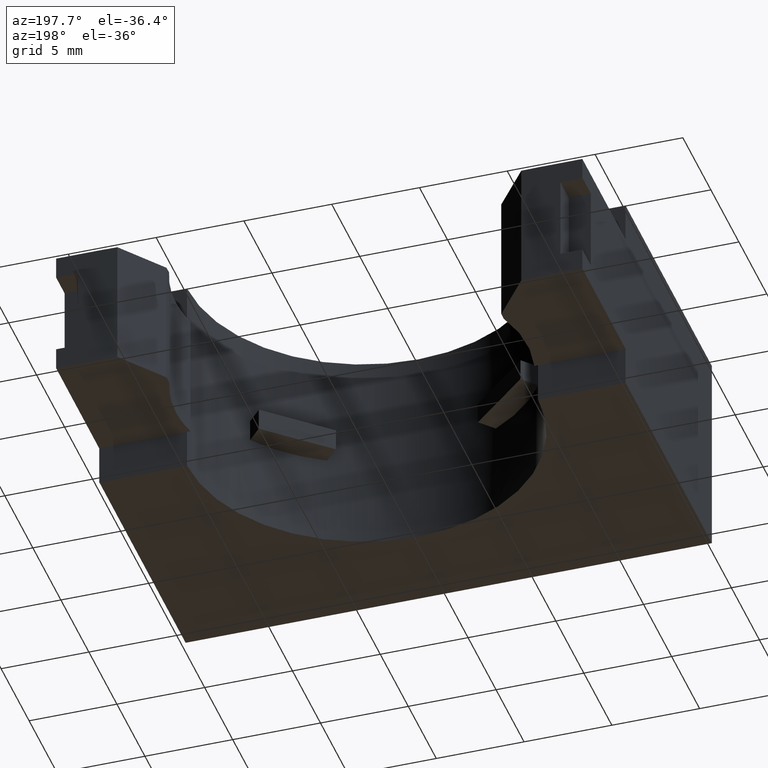
[diagram: clean part render]
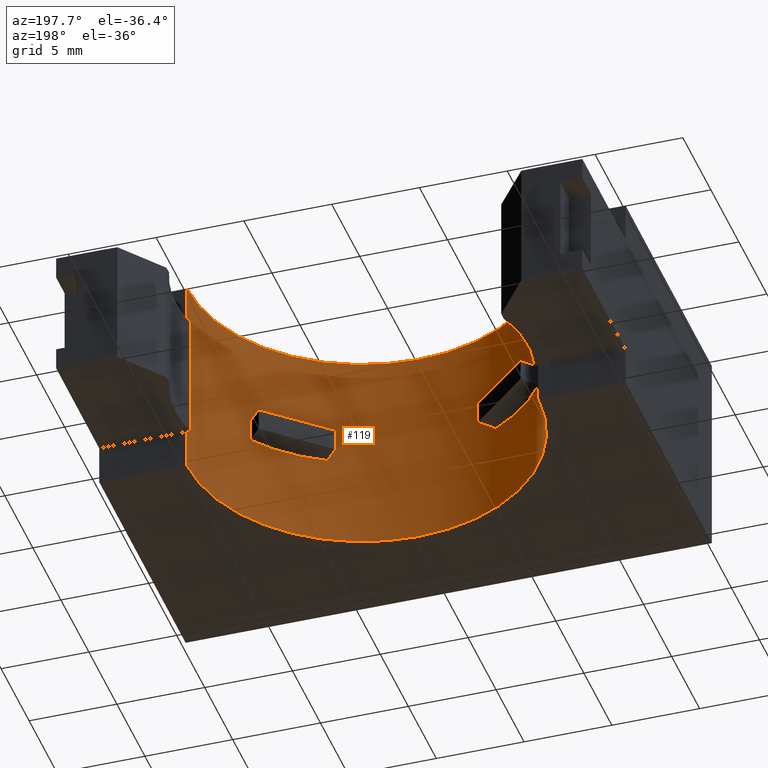
[diagram: same view with one face highlighted and labeled with its STEP entity id]
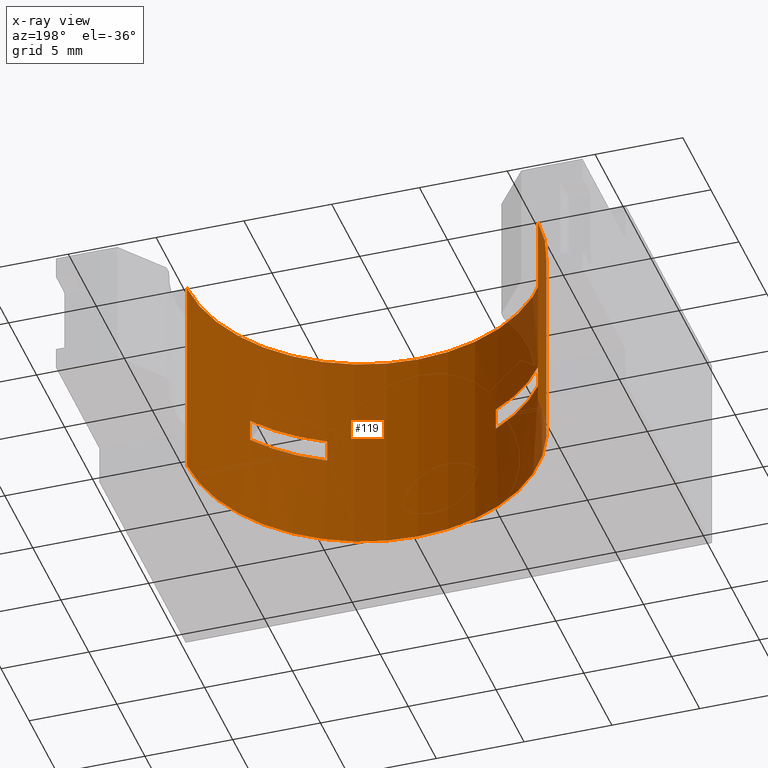
[diagram: x-ray of the same camera — body ghosted, the highlighted face saturated]
A machine part, auxiliary view. The second image highlights one B-rep face of the part: STEP entity #119.
The next image is the same camera in x-ray: the body ghosted, the highlighted face saturated — about 3% of this face is hidden behind the body in this view.
In plain terms, the highlighted cylindrical surface (partial cylindrical patch) has radius 9.9907 mm, axis along (-0, -0, 1).
Its self-contained STEP definition (entity closure, byte-faithful):
#50 = ORIENTED_EDGE ( 'NONE', *, *, #136, .F. ) ;
#91 = ORIENTED_EDGE ( 'NONE', *, *, #92, .F. ) ;
#92 = EDGE_CURVE ( 'NONE', #100, #101, #961, .T. ) ;
#100 = VERTEX_POINT ( 'NONE', #1007 ) ;
#101 = VERTEX_POINT ( 'NONE', #1006 ) ;
#102 = VERTEX_POINT ( 'NONE', #1010 ) ;
#108 = VERTEX_POINT ( 'NONE', #931 ) ;
#119 = ADVANCED_FACE ( 'NONE', ( #1015, #1014, #1013 ), #1011, .F. ) ;
#126 = EDGE_CURVE ( 'NONE', #174, #101, #1000, .T. ) ;
#127 = EDGE_LOOP ( 'NONE', ( #128, #262, #265, #50 ) ) ;
#128 = ORIENTED_EDGE ( 'NONE', *, *, #129, .F. ) ;
#129 = EDGE_CURVE ( 'NONE', #130, #261, #995, .T. ) ;
#130 = VERTEX_POINT ( 'NONE', #991 ) ;
#136 = EDGE_CURVE ( 'NONE', #261, #267, #948, .T. ) ;
#159 = VERTEX_POINT ( 'NONE', #849 ) ;
#173 = EDGE_CURVE ( 'NONE', #321, #174, #987, .T. ) ;
#174 = VERTEX_POINT ( 'NONE', #983 ) ;
#175 = ORIENTED_EDGE ( 'NONE', *, *, #126, .T. ) ;
#200 = EDGE_LOOP ( 'NONE', ( #91, #319, #322, #175 ) ) ;
#217 = EDGE_LOOP ( 'NONE', ( #218, #281, #283, #285, #288, #312, #331, #333 ) ) ;
#218 = ORIENTED_EDGE ( 'NONE', *, *, #219, .T. ) ;
#219 = EDGE_CURVE ( 'NONE', #220, #221, #903, .T. ) ;
#220 = VERTEX_POINT ( 'NONE', #899 ) ;
#221 = VERTEX_POINT ( 'NONE', #898 ) ;
#261 = VERTEX_POINT ( 'NONE', #1041 ) ;
#262 = ORIENTED_EDGE ( 'NONE', *, *, #263, .T. ) ;
#263 = EDGE_CURVE ( 'NONE', #130, #264, #1132, .T. ) ;
#264 = VERTEX_POINT ( 'NONE', #1128 ) ;
#265 = ORIENTED_EDGE ( 'NONE', *, *, #266, .T. ) ;
#266 = EDGE_CURVE ( 'NONE', #264, #267, #1089, .T. ) ;
#267 = VERTEX_POINT ( 'NONE', #1123 ) ;
#281 = ORIENTED_EDGE ( 'NONE', *, *, #282, .F. ) ;
#282 = EDGE_CURVE ( 'NONE', #108, #221, #1097, .T. ) ;
#283 = ORIENTED_EDGE ( 'NONE', *, *, #284, .F. ) ;
#284 = EDGE_CURVE ( 'NONE', #159, #108, #1093, .T. ) ;
#285 = ORIENTED_EDGE ( 'NONE', *, *, #286, .F. ) ;
#286 = EDGE_CURVE ( 'NONE', #287, #159, #1141, .T. ) ;
#287 = VERTEX_POINT ( 'NONE', #1137 ) ;
#288 = ORIENTED_EDGE ( 'NONE', *, *, #310, .F. ) ;
#306 = VERTEX_POINT ( 'NONE', #1144 ) ;
#310 = EDGE_CURVE ( 'NONE', #311, #287, #1068, .T. ) ;
#311 = VERTEX_POINT ( 'NONE', #1158 ) ;
#312 = ORIENTED_EDGE ( 'NONE', *, *, #313, .T. ) ;
#313 = EDGE_CURVE ( 'NONE', #311, #102, #1160, .T. ) ;
#319 = ORIENTED_EDGE ( 'NONE', *, *, #320, .F. ) ;
#320 = EDGE_CURVE ( 'NONE', #321, #100, #1401, .T. ) ;
#321 = VERTEX_POINT ( 'NONE', #1396 ) ;
#322 = ORIENTED_EDGE ( 'NONE', *, *, #173, .T. ) ;
#331 = ORIENTED_EDGE ( 'NONE', *, *, #332, .T. ) ;
#332 = EDGE_CURVE ( 'NONE', #102, #306, #1276, .T. ) ;
#333 = ORIENTED_EDGE ( 'NONE', *, *, #334, .T. ) ;
#334 = EDGE_CURVE ( 'NONE', #306, #220, #1272, .T. ) ;
#849 = CARTESIAN_POINT ( 'NONE',  ( 0.3933333333333332600, 0.1516666666666670600, 0.08954999999999972700 ) ) ;
#898 = CARTESIAN_POINT ( 'NONE',  ( 0.3933333333333332600, 0.1516666666666670000, 0.4699999999999999700 ) ) ;
#899 = CARTESIAN_POINT ( 'NONE',  ( -0.3933333333333332600, 0.1516666666666670000, 0.4699999999999999700 ) ) ;
#900 = DIRECTION ( 'NONE',  ( 1.000000000000000000, 0.0000000000000000000, 0.0000000000000000000 ) ) ;
#901 = DIRECTION ( 'NONE',  ( 0.0000000000000000000, 0.0000000000000000000, 1.000000000000000000 ) ) ;
#902 = AXIS2_PLACEMENT_3D ( 'NONE', #909, #901, #900 ) ;
#903 = CIRCLE ( 'NONE', #902, 0.3933333333333332600 ) ;
#909 = CARTESIAN_POINT ( 'NONE',  ( 0.0000000000000000000, 0.1516666666666670600, 0.4699999999999999700 ) ) ;
#931 = CARTESIAN_POINT ( 'NONE',  ( 0.3933333333333332600, 0.1516666666666670000, 0.3804500000000002300 ) ) ;
#945 = DIRECTION ( 'NONE',  ( -0.0000000000000000000, -8.326672684688672800E-017, 1.000000000000000000 ) ) ;
#946 = VECTOR ( 'NONE', #945, 39.37007874015748100 ) ;
#947 = CARTESIAN_POINT ( 'NONE',  ( 0.1891383116905818500, -0.1932069480995939900, 0.2099999999999999900 ) ) ;
#948 = LINE ( 'NONE', #947, #946 ) ;
#955 = DIRECTION ( 'NONE',  ( 1.000000000000000000, 0.0000000000000000000, 0.0000000000000000000 ) ) ;
#956 = DIRECTION ( 'NONE',  ( -0.0000000000000000000, -0.0000000000000000000, 1.000000000000000000 ) ) ;
#957 = CARTESIAN_POINT ( 'NONE',  ( 0.0000000000000000000, 0.1516666666666670600, 0.0000000000000000000 ) ) ;
#959 = DIRECTION ( 'NONE',  ( -0.0000000000000000000, -8.326672684688672800E-017, 1.000000000000000000 ) ) ;
#960 = VECTOR ( 'NONE', #959, 39.37007874015748100 ) ;
#961 = LINE ( 'NONE', #1005, #960 ) ;
#983 = CARTESIAN_POINT ( 'NONE',  ( -0.1891383116905819800, -0.1932069480995939600, 0.2599999999999999500 ) ) ;
#984 = DIRECTION ( 'NONE',  ( -0.0000000000000000000, -8.326672684688672800E-017, 1.000000000000000000 ) ) ;
#985 = VECTOR ( 'NONE', #984, 39.37007874015748100 ) ;
#986 = CARTESIAN_POINT ( 'NONE',  ( -0.1891383116905819800, -0.1932069480995939600, 0.2099999999999999400 ) ) ;
#987 = LINE ( 'NONE', #986, #985 ) ;
#991 = CARTESIAN_POINT ( 'NONE',  ( 0.3232140239537951700, -0.07248463453568283800, 0.2099999999999999900 ) ) ;
#992 = DIRECTION ( 'NONE',  ( 0.0000000000000000000, -1.000000000000000000, -8.681720318848293700E-017 ) ) ;
#993 = DIRECTION ( 'NONE',  ( -0.0000000000000000000, 8.326672684688674100E-017, -1.000000000000000000 ) ) ;
#994 = AXIS2_PLACEMENT_3D ( 'NONE', #1025, #993, #992 ) ;
#995 = CIRCLE ( 'NONE', #994, 0.3933333333333333700 ) ;
#996 = DIRECTION ( 'NONE',  ( 0.0000000000000000000, 1.000000000000000000, 8.681720318848292500E-017 ) ) ;
#997 = DIRECTION ( 'NONE',  ( 0.0000000000000000000, 8.326672684688674100E-017, -1.000000000000000000 ) ) ;
#998 = CARTESIAN_POINT ( 'NONE',  ( 0.0000000000000000000, 0.1516666666666670600, 0.2600000000000000100 ) ) ;
#999 = AXIS2_PLACEMENT_3D ( 'NONE', #998, #997, #996 ) ;
#1000 = CIRCLE ( 'NONE', #999, 0.3933333333333334200 ) ;
#1005 = CARTESIAN_POINT ( 'NONE',  ( -0.3232140239537952800, -0.07248463453568275400, 0.2099999999999999900 ) ) ;
#1006 = CARTESIAN_POINT ( 'NONE',  ( -0.3232140239537952800, -0.07248463453568274000, 0.2600000000000000100 ) ) ;
#1007 = CARTESIAN_POINT ( 'NONE',  ( -0.3232140239537952800, -0.07248463453568267100, 0.2099999999999999900 ) ) ;
#1010 = CARTESIAN_POINT ( 'NONE',  ( -0.3933333333333332600, 0.1516666666666670600, 0.08954999999999972700 ) ) ;
#1011 = CYLINDRICAL_SURFACE ( 'NONE', #1012, 0.3933333333333332600 ) ;
#1012 = AXIS2_PLACEMENT_3D ( 'NONE', #957, #956, #955 ) ;
#1013 = FACE_BOUND ( 'NONE', #127, .T. ) ;
#1014 = FACE_BOUND ( 'NONE', #200, .T. ) ;
#1015 = FACE_OUTER_BOUND ( 'NONE', #217, .T. ) ;
#1025 = CARTESIAN_POINT ( 'NONE',  ( 0.0000000000000000000, 0.1516666666666670600, 0.2099999999999999900 ) ) ;
#1041 = CARTESIAN_POINT ( 'NONE',  ( 0.1891383116905818500, -0.1932069480995939900, 0.2099999999999999900 ) ) ;
#1064 = DIRECTION ( 'NONE',  ( 1.000000000000000000, 0.0000000000000000000, 0.0000000000000000000 ) ) ;
#1065 = DIRECTION ( 'NONE',  ( 0.0000000000000000000, 0.0000000000000000000, 1.000000000000000000 ) ) ;
#1066 = CARTESIAN_POINT ( 'NONE',  ( 0.0000000000000000000, 0.1516666666666670600, 0.0000000000000000000 ) ) ;
#1067 = AXIS2_PLACEMENT_3D ( 'NONE', #1066, #1065, #1064 ) ;
#1068 = CIRCLE ( 'NONE', #1067, 0.3933333333333332600 ) ;
#1089 = CIRCLE ( 'NONE', #1127, 0.3933333333333333700 ) ;
#1092 = CARTESIAN_POINT ( 'NONE',  ( 0.3933333333333332600, 0.1516666666666670600, 0.0000000000000000000 ) ) ;
#1093 = LINE ( 'NONE', #1092, #1143 ) ;
#1094 = DIRECTION ( 'NONE',  ( -0.0000000000000000000, -0.0000000000000000000, 1.000000000000000000 ) ) ;
#1095 = VECTOR ( 'NONE', #1094, 39.37007874015748100 ) ;
#1096 = CARTESIAN_POINT ( 'NONE',  ( 0.3933333333333332600, 0.1516666666666670600, 0.0000000000000000000 ) ) ;
#1097 = LINE ( 'NONE', #1096, #1095 ) ;
#1123 = CARTESIAN_POINT ( 'NONE',  ( 0.1891383116905817900, -0.1932069480995939100, 0.2599999999999999500 ) ) ;
#1124 = DIRECTION ( 'NONE',  ( 0.0000000000000000000, -1.000000000000000000, -8.681720318848293700E-017 ) ) ;
#1125 = DIRECTION ( 'NONE',  ( -0.0000000000000000000, 8.326672684688674100E-017, -1.000000000000000000 ) ) ;
#1126 = CARTESIAN_POINT ( 'NONE',  ( 0.0000000000000000000, 0.1516666666666670600, 0.2600000000000000100 ) ) ;
#1127 = AXIS2_PLACEMENT_3D ( 'NONE', #1126, #1125, #1124 ) ;
#1128 = CARTESIAN_POINT ( 'NONE',  ( 0.3232140239537951700, -0.07248463453568283800, 0.2600000000000000100 ) ) ;
#1129 = DIRECTION ( 'NONE',  ( -0.0000000000000000000, -8.326672684688672800E-017, 1.000000000000000000 ) ) ;
#1130 = VECTOR ( 'NONE', #1129, 39.37007874015748100 ) ;
#1131 = CARTESIAN_POINT ( 'NONE',  ( 0.3232140239537951700, -0.07248463453568283800, 0.2099999999999999900 ) ) ;
#1132 = LINE ( 'NONE', #1131, #1130 ) ;
#1137 = CARTESIAN_POINT ( 'NONE',  ( 0.3933333333333332600, 0.1516666666666670600, 0.0000000000000000000 ) ) ;
#1138 = DIRECTION ( 'NONE',  ( -0.0000000000000000000, -0.0000000000000000000, 1.000000000000000000 ) ) ;
#1139 = VECTOR ( 'NONE', #1138, 39.37007874015748100 ) ;
#1140 = CARTESIAN_POINT ( 'NONE',  ( 0.3933333333333332600, 0.1516666666666670600, 0.0000000000000000000 ) ) ;
#1141 = LINE ( 'NONE', #1140, #1139 ) ;
#1142 = DIRECTION ( 'NONE',  ( -0.0000000000000000000, -0.0000000000000000000, 1.000000000000000000 ) ) ;
#1143 = VECTOR ( 'NONE', #1142, 39.37007874015748100 ) ;
#1144 = CARTESIAN_POINT ( 'NONE',  ( -0.3933333333333332600, 0.1516666666666670000, 0.3804500000000002300 ) ) ;
#1158 = CARTESIAN_POINT ( 'NONE',  ( -0.3933333333333332600, 0.1516666666666670600, 0.0000000000000000000 ) ) ;
#1159 = CARTESIAN_POINT ( 'NONE',  ( -0.3933333333333332600, 0.1516666666666670600, 0.0000000000000000000 ) ) ;
#1160 = LINE ( 'NONE', #1159, #1165 ) ;
#1164 = DIRECTION ( 'NONE',  ( -0.0000000000000000000, -0.0000000000000000000, 1.000000000000000000 ) ) ;
#1165 = VECTOR ( 'NONE', #1164, 39.37007874015748100 ) ;
#1269 = DIRECTION ( 'NONE',  ( -0.0000000000000000000, -0.0000000000000000000, 1.000000000000000000 ) ) ;
#1270 = VECTOR ( 'NONE', #1269, 39.37007874015748100 ) ;
#1271 = CARTESIAN_POINT ( 'NONE',  ( -0.3933333333333332600, 0.1516666666666670900, 7.319704509996692100E-033 ) ) ;
#1272 = LINE ( 'NONE', #1271, #1270 ) ;
#1273 = DIRECTION ( 'NONE',  ( -0.0000000000000000000, -0.0000000000000000000, 1.000000000000000000 ) ) ;
#1274 = VECTOR ( 'NONE', #1273, 39.37007874015748100 ) ;
#1275 = CARTESIAN_POINT ( 'NONE',  ( -0.3933333333333332600, 0.1516666666666670600, 0.0000000000000000000 ) ) ;
#1276 = LINE ( 'NONE', #1275, #1274 ) ;
#1396 = CARTESIAN_POINT ( 'NONE',  ( -0.1891383116905819000, -0.1932069480995938800, 0.2099999999999999400 ) ) ;
#1397 = DIRECTION ( 'NONE',  ( 0.0000000000000000000, 1.000000000000000000, 8.681720318848292500E-017 ) ) ;
#1398 = DIRECTION ( 'NONE',  ( 0.0000000000000000000, 8.326672684688674100E-017, -1.000000000000000000 ) ) ;
#1399 = CARTESIAN_POINT ( 'NONE',  ( 0.0000000000000000000, 0.1516666666666670600, 0.2099999999999999900 ) ) ;
#1400 = AXIS2_PLACEMENT_3D ( 'NONE', #1399, #1398, #1397 ) ;
#1401 = CIRCLE ( 'NONE', #1400, 0.3933333333333334200 ) ;